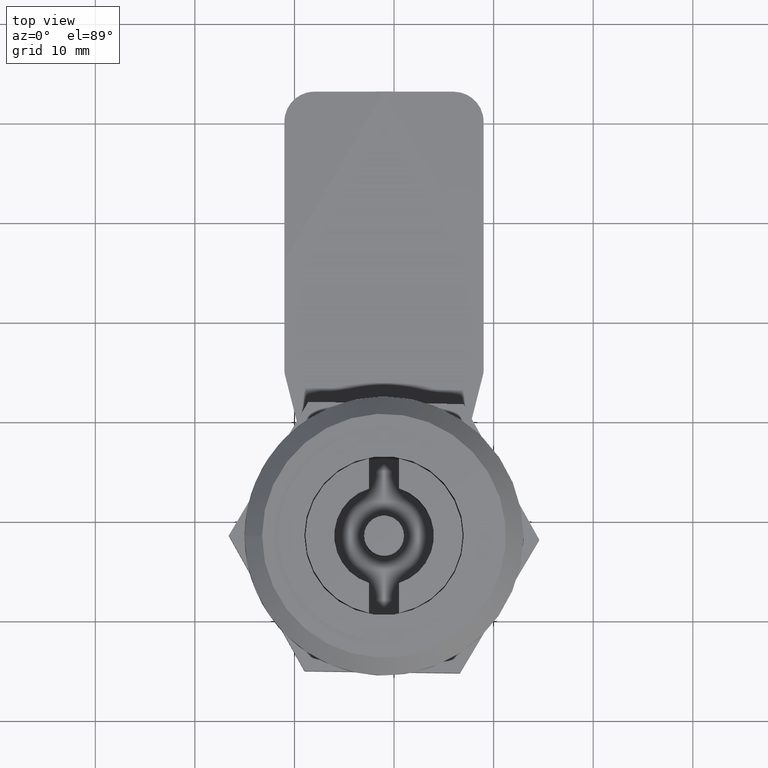
[diagram: clean part render]
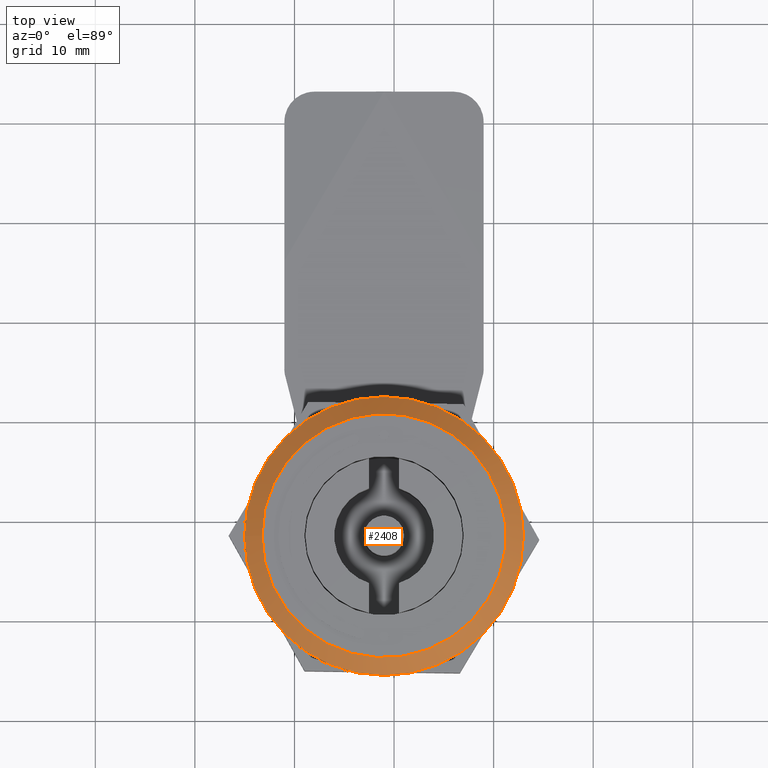
[diagram: same view with one face highlighted and labeled with its STEP entity id]
A machine part, top view. The second image highlights one B-rep face of the part: STEP entity #2408.
In plain terms, the highlighted conical surface has half-angle 41.186 deg.
Its self-contained STEP definition (entity closure, byte-faithful):
#96=CONICAL_SURFACE('',#2602,14.,41.1859251657097);
#116=FACE_BOUND('',#815,.T.);
#649=FACE_OUTER_BOUND('',#814,.T.);
#814=EDGE_LOOP('',(#1762));
#815=EDGE_LOOP('',(#1763));
#983=CIRCLE('',#2597,14.);
#985=CIRCLE('',#2601,12.25);
#1105=VERTEX_POINT('',#3653);
#1107=VERTEX_POINT('',#3659);
#1354=EDGE_CURVE('',#1105,#1105,#983,.T.);
#1356=EDGE_CURVE('',#1107,#1107,#985,.T.);
#1762=ORIENTED_EDGE('',*,*,#1356,.T.);
#1763=ORIENTED_EDGE('',*,*,#1354,.T.);
#2408=ADVANCED_FACE('',(#649,#116),#96,.T.);
#2597=AXIS2_PLACEMENT_3D('',#3654,#2957,#2958);
#2601=AXIS2_PLACEMENT_3D('',#3660,#2965,#2966);
#2602=AXIS2_PLACEMENT_3D('',#3661,#2967,#2968);
#2957=DIRECTION('center_axis',(0.,0.,1.));
#2958=DIRECTION('ref_axis',(-1.,0.,0.));
#2965=DIRECTION('center_axis',(0.,0.,-1.));
#2966=DIRECTION('ref_axis',(-1.,0.,0.));
#2967=DIRECTION('center_axis',(0.,0.,-1.));
#2968=DIRECTION('ref_axis',(-1.,0.,0.));
#3653=CARTESIAN_POINT('',(14.,1.71450551880629E-15,-2.));
#3654=CARTESIAN_POINT('Origin',(0.,0.,-2.));
#3659=CARTESIAN_POINT('',(-12.25,0.,0.));
#3660=CARTESIAN_POINT('Origin',(0.,0.,0.));
#3661=CARTESIAN_POINT('Origin',(0.,0.,-2.));